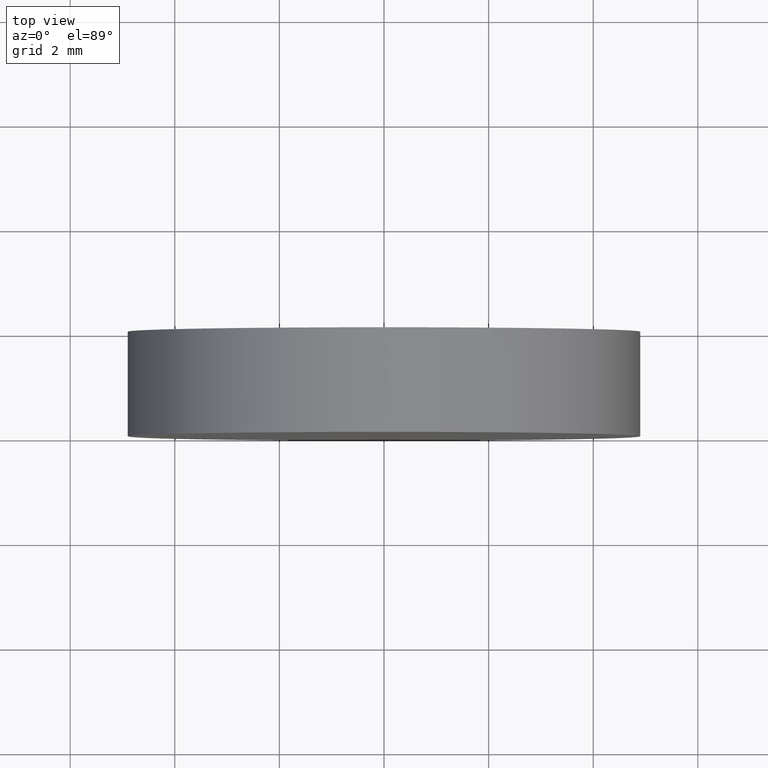
[diagram: clean part render]
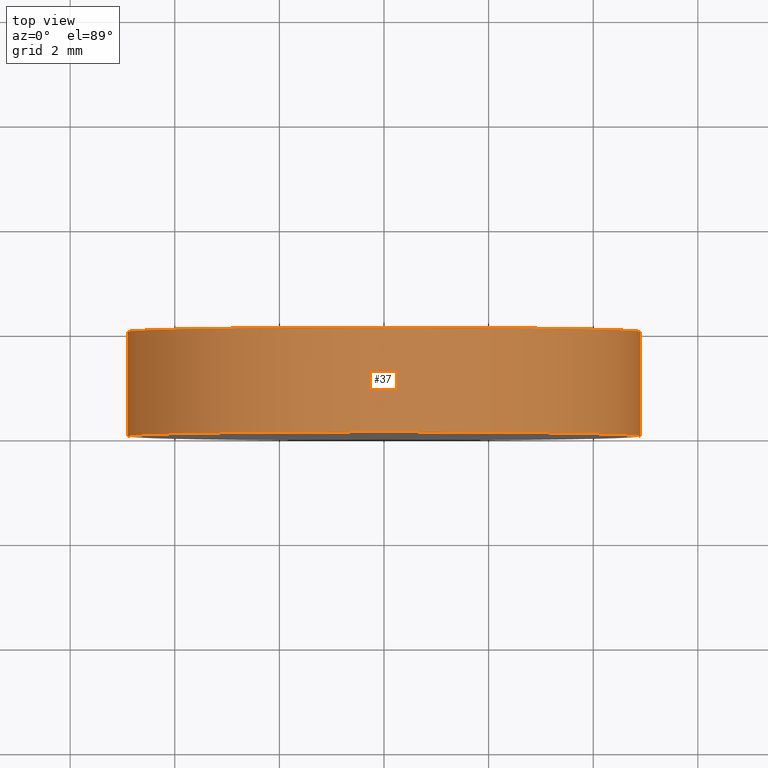
[diagram: same view with one face highlighted and labeled with its STEP entity id]
A machine part, top view. The second image highlights one B-rep face of the part: STEP entity #37.
In plain terms, the highlighted cylindrical surface (bore or boss wall) has radius 4.9 mm, axis along (0, -1, 0).
Its self-contained STEP definition (entity closure, byte-faithful):
#15=FACE_BOUND('',#22,.T.);
#16=CYLINDRICAL_SURFACE('',#43,4.9);
#18=FACE_OUTER_BOUND('',#21,.T.);
#21=EDGE_LOOP('',(#31));
#22=EDGE_LOOP('',(#32));
#24=CIRCLE('',#42,4.9);
#25=CIRCLE('',#44,4.9);
#26=VERTEX_POINT('',#60);
#27=VERTEX_POINT('',#63);
#28=EDGE_CURVE('',#26,#26,#24,.T.);
#29=EDGE_CURVE('',#27,#27,#25,.T.);
#31=ORIENTED_EDGE('',*,*,#28,.T.);
#32=ORIENTED_EDGE('',*,*,#29,.F.);
#37=ADVANCED_FACE('',(#18,#15),#16,.T.);
#42=AXIS2_PLACEMENT_3D('',#61,#50,#51);
#43=AXIS2_PLACEMENT_3D('',#62,#52,#53);
#44=AXIS2_PLACEMENT_3D('',#64,#54,#55);
#50=DIRECTION('center_axis',(3.06161699786838E-16,-1.,0.));
#51=DIRECTION('ref_axis',(1.,3.06161699786838E-16,0.));
#52=DIRECTION('center_axis',(3.06161699786838E-16,-1.,0.));
#53=DIRECTION('ref_axis',(1.,2.6082626803531E-16,0.));
#54=DIRECTION('center_axis',(3.06161699786838E-16,-1.,0.));
#55=DIRECTION('ref_axis',(1.,3.06161699786838E-16,0.));
#60=CARTESIAN_POINT('',(4.9,2.,0.));
#61=CARTESIAN_POINT('Origin',(-6.12323399573676E-16,2.,0.));
#62=CARTESIAN_POINT('Origin',(-3.06161699786838E-16,0.999999999999999,0.));
#63=CARTESIAN_POINT('',(4.9,0.,0.));
#64=CARTESIAN_POINT('Origin',(5.35866582140899E-31,-1.50019232895551E-15,
0.));